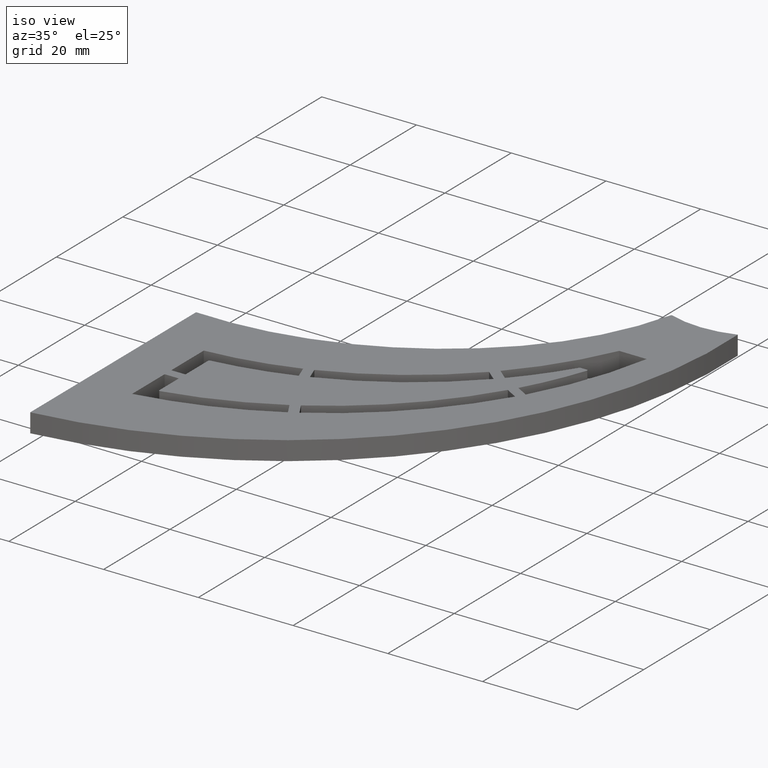
[diagram: clean part render]
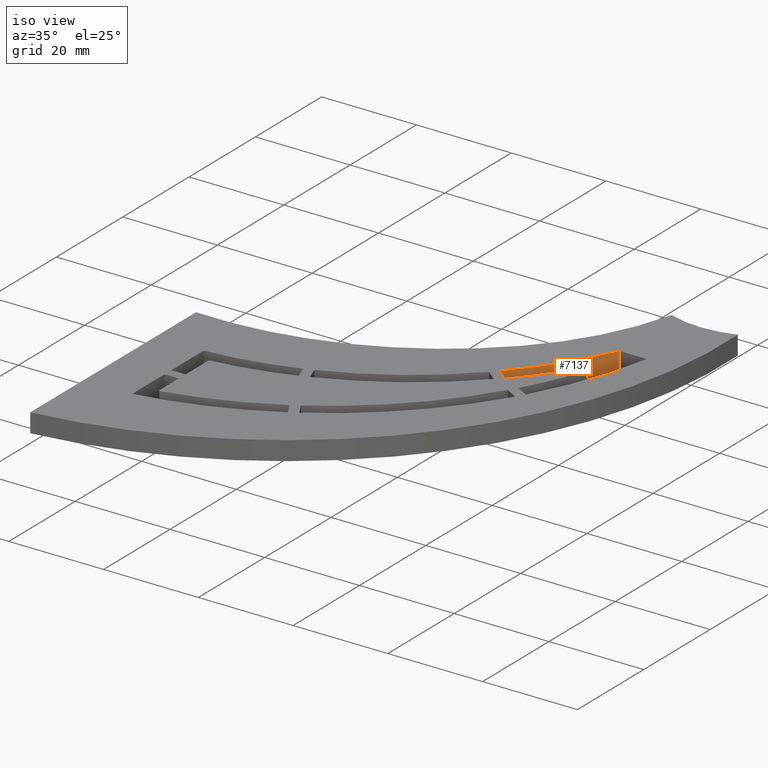
[diagram: same view with one face highlighted and labeled with its STEP entity id]
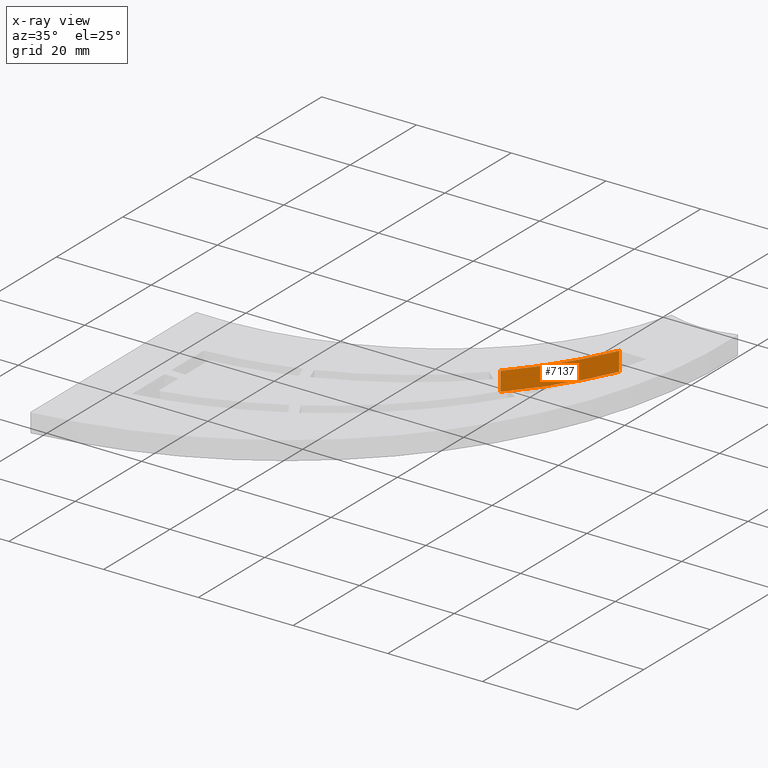
[diagram: x-ray of the same camera — body ghosted, the highlighted face saturated]
A machine part, iso view. The second image highlights one B-rep face of the part: STEP entity #7137.
The next image is the same camera in x-ray: the body ghosted, the highlighted face saturated — about 0% of this face is hidden behind the body in this view.
In plain terms, the highlighted cylindrical surface (partial cylindrical patch) has radius 70 mm, axis along (-0, -0, -1).
Its self-contained STEP definition (entity closure, byte-faithful):
#404 = VECTOR ( 'NONE', #10236, 1000.000000000000000 ) ;
#610 = VECTOR ( 'NONE', #1312, 1000.000000000000000 ) ;
#1049 = ORIENTED_EDGE ( 'NONE', *, *, #1416, .F. ) ;
#1312 = DIRECTION ( 'NONE',  ( -0.000000000000000000, -0.000000000000000000, -1.000000000000000000 ) ) ;
#1342 = VERTEX_POINT ( 'NONE', #8229 ) ;
#1384 = LINE ( 'NONE', #11207, #404 ) ;
#1416 = EDGE_CURVE ( 'NONE', #5424, #1634, #1384, .T. ) ;
#1634 = VERTEX_POINT ( 'NONE', #2695 ) ;
#2056 = CIRCLE ( 'NONE', #12426, 70.00000000000000000 ) ;
#2503 = DIRECTION ( 'NONE',  ( 1.000000000000000000, 0.000000000000000000, 0.000000000000000000 ) ) ;
#2695 = CARTESIAN_POINT ( 'NONE',  ( 69.01433309437241803, 54.00000000000000711, -2.000000000000000000 ) ) ;
#4699 = CARTESIAN_POINT ( 'NONE',  ( 56.87206340631111345, 35.52546025000667385, -2.000000000000000000 ) ) ;
#4775 = LINE ( 'NONE', #5356, #610 ) ;
#5287 = FACE_OUTER_BOUND ( 'NONE', #6751, .T. ) ;
#5356 = CARTESIAN_POINT ( 'NONE',  ( 56.87206340631111345, 35.52546025000667385, 2.000000000000000000 ) ) ;
#5424 = VERTEX_POINT ( 'NONE', #11501 ) ;
#5656 = DIRECTION ( 'NONE',  ( -0.000000000000000000, 0.000000000000000000, 1.000000000000000000 ) ) ;
#6056 = DIRECTION ( 'NONE',  ( -1.000000000000000000, 0.000000000000000000, 0.000000000000000000 ) ) ;
#6569 = DIRECTION ( 'NONE',  ( -0.000000000000000000, 0.000000000000000000, 1.000000000000000000 ) ) ;
#6751 = EDGE_LOOP ( 'NONE', ( #7801, #1049, #7309, #9136 ) ) ;
#7137 = ADVANCED_FACE ( 'NONE', ( #5287 ), #10424, .T. ) ;
#7309 = ORIENTED_EDGE ( 'NONE', *, *, #11178, .F. ) ;
#7801 = ORIENTED_EDGE ( 'NONE', *, *, #12739, .T. ) ;
#8229 = CARTESIAN_POINT ( 'NONE',  ( 56.87206340631111345, 35.52546025000667385, 2.000000000000000000 ) ) ;
#8542 = CIRCLE ( 'NONE', #12349, 70.00000000000000000 ) ;
#9136 = ORIENTED_EDGE ( 'NONE', *, *, #10630, .T. ) ;
#10123 = DIRECTION ( 'NONE',  ( -0.000000000000000000, -0.000000000000000000, -1.000000000000000000 ) ) ;
#10236 = DIRECTION ( 'NONE',  ( -0.000000000000000000, -0.000000000000000000, -1.000000000000000000 ) ) ;
#10424 = CYLINDRICAL_SURFACE ( 'NONE', #13003, 70.00000000000000000 ) ;
#10630 = EDGE_CURVE ( 'NONE', #1342, #12440, #4775, .T. ) ;
#10899 = CARTESIAN_POINT ( 'NONE',  ( 5.180452133363093736, 82.72691493104838401, 2.000000000000000000 ) ) ;
#11178 = EDGE_CURVE ( 'NONE', #1342, #5424, #2056, .T. ) ;
#11207 = CARTESIAN_POINT ( 'NONE',  ( 69.01433309437241803, 54.00000000000000711, 2.000000000000000000 ) ) ;
#11226 = CARTESIAN_POINT ( 'NONE',  ( 5.180452133363093736, 82.72691493104838401, 2.000000000000000000 ) ) ;
#11501 = CARTESIAN_POINT ( 'NONE',  ( 69.01433309437241803, 54.00000000000000711, 2.000000000000000000 ) ) ;
#12349 = AXIS2_PLACEMENT_3D ( 'NONE', #12671, #6569, #2503 ) ;
#12426 = AXIS2_PLACEMENT_3D ( 'NONE', #10899, #5656, #12828 ) ;
#12440 = VERTEX_POINT ( 'NONE', #4699 ) ;
#12671 = CARTESIAN_POINT ( 'NONE',  ( 5.180452133363093736, 82.72691493104838401, -2.000000000000000000 ) ) ;
#12739 = EDGE_CURVE ( 'NONE', #12440, #1634, #8542, .T. ) ;
#12828 = DIRECTION ( 'NONE',  ( 1.000000000000000000, 0.000000000000000000, 0.000000000000000000 ) ) ;
#13003 = AXIS2_PLACEMENT_3D ( 'NONE', #11226, #10123, #6056 ) ;